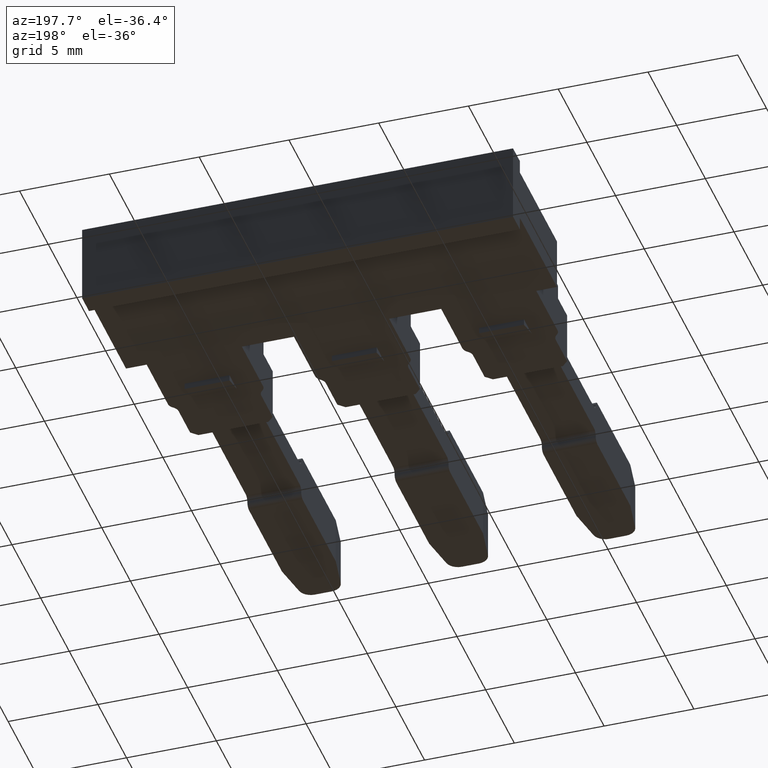
[diagram: clean part render]
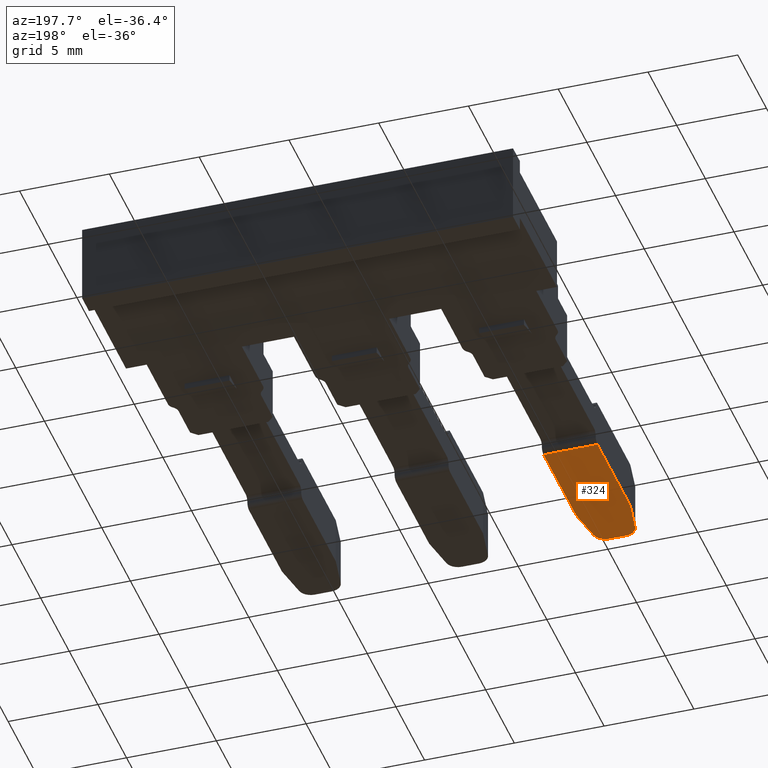
[diagram: same view with one face highlighted and labeled with its STEP entity id]
A machine part, auxiliary view. The second image highlights one B-rep face of the part: STEP entity #324.
In plain terms, the highlighted planar face has unit normal (0, 0, -1).
Its self-contained STEP definition (entity closure, byte-faithful):
#64 = EDGE_CURVE ( 'NONE', #536, #563, #842, .T. ) ;
#93 = EDGE_CURVE ( 'NONE', #555, #572, #920, .T. ) ;
#141 = EDGE_CURVE ( 'NONE', #550, #563, #3749, .T. ) ;
#148 = EDGE_CURVE ( 'NONE', #509, #555, #1075, .T. ) ;
#163 = EDGE_CURVE ( 'NONE', #550, #509, #1168, .T. ) ;
#171 = EDGE_CURVE ( 'NONE', #589, #528, #1160, .T. ) ;
#177 = EDGE_CURVE ( 'NONE', #536, #528, #3748, .T. ) ;
#189 = EDGE_CURVE ( 'NONE', #572, #589, #1204, .T. ) ;
#324 = ADVANCED_FACE ( 'NONE', ( #3225 ), #3226, .T. ) ;
#509 = VERTEX_POINT ( 'NONE', #2876 ) ;
#528 = VERTEX_POINT ( 'NONE', #2842 ) ;
#536 = VERTEX_POINT ( 'NONE', #2865 ) ;
#550 = VERTEX_POINT ( 'NONE', #2882 ) ;
#555 = VERTEX_POINT ( 'NONE', #2896 ) ;
#563 = VERTEX_POINT ( 'NONE', #2899 ) ;
#572 = VERTEX_POINT ( 'NONE', #2949 ) ;
#589 = VERTEX_POINT ( 'NONE', #2905 ) ;
#820 = DIRECTION ( 'NONE',  ( -1.000000000000000000, -5.361227742878434600E-014, 0.0000000000000000000 ) ) ;
#842 = LINE ( 'NONE', #850, #3597 ) ;
#850 = CARTESIAN_POINT ( 'NONE',  ( 1126.407449967277900, 643.9455402684813000, 0.1522013187406430500 ) ) ;
#920 = LINE ( 'NONE', #921, #3638 ) ;
#921 = CARTESIAN_POINT ( 'NONE',  ( 1133.294493762790800, 652.1700208247689300, 0.1522013187405628900 ) ) ;
#924 = DIRECTION ( 'NONE',  ( 0.9999999999311652800, -1.173325886225305400E-005, 5.364982877096552300E-014 ) ) ;
#1063 = DIRECTION ( 'NONE',  ( -5.364441115151317600E-014, -2.347622273454535600E-024, 1.000000000000000000 ) ) ;
#1073 = CARTESIAN_POINT ( 'NONE',  ( 1134.322684756973600, 644.6455402684818000, 0.1522013187406066100 ) ) ;
#1075 = LINE ( 'NONE', #1132, #3727 ) ;
#1076 = DIRECTION ( 'NONE',  ( 1.000000000000000000, 0.0000000000000000000, 5.362928603187818200E-014 ) ) ;
#1098 = DIRECTION ( 'NONE',  ( -8.155722747765769100E-008, 0.9999999999999966700, 0.0000000000000000000 ) ) ;
#1132 = CARTESIAN_POINT ( 'NONE',  ( 1133.294495269929700, 633.9904964572250500, 0.1522013187405610900 ) ) ;
#1133 = CARTESIAN_POINT ( 'NONE',  ( 1136.294499842614600, 646.4455650513585900, 0.1522013187407238500 ) ) ;
#1155 = CARTESIAN_POINT ( 'NONE',  ( 1133.633319294938700, 644.5239867421933000, 0.1522013187405810700 ) ) ;
#1156 = DIRECTION ( 'NONE',  ( -0.1736478946976841300, 0.9848078029072788700, -9.321079137594365300E-015 ) ) ;
#1160 = LINE ( 'NONE', #1133, #3733 ) ;
#1162 = DIRECTION ( 'NONE',  ( -0.1736478946976743900, -0.9848078029072806500, -9.321079137593844600E-015 ) ) ;
#1168 = LINE ( 'NONE', #1155, #3706 ) ;
#1182 = DIRECTION ( 'NONE',  ( -5.364441115151317600E-014, -2.347622273454535600E-024, 1.000000000000000000 ) ) ;
#1194 = DIRECTION ( 'NONE',  ( 1.000000000000000000, 0.0000000000000000000, 5.362928603186116800E-014 ) ) ;
#1201 = CARTESIAN_POINT ( 'NONE',  ( 1135.266308848431700, 644.6455402684818000, 0.1522013187406430500 ) ) ;
#1204 = LINE ( 'NONE', #1217, #3776 ) ;
#1217 = CARTESIAN_POINT ( 'NONE',  ( 1136.294513078971900, 633.9904998856812900, 0.1522013187407241500 ) ) ;
#1218 = DIRECTION ( 'NONE',  ( 7.162730294145293700E-007, -0.9999999999997434300, 0.0000000000000000000 ) ) ;
#1588 = EDGE_LOOP ( 'NONE', ( #1808, #1818, #1791, #1884, #1889, #1860, #1817, #1863 ) ) ;
#1791 = ORIENTED_EDGE ( 'NONE', *, *, #148, .T. ) ;
#1808 = ORIENTED_EDGE ( 'NONE', *, *, #141, .F. ) ;
#1817 = ORIENTED_EDGE ( 'NONE', *, *, #177, .F. ) ;
#1818 = ORIENTED_EDGE ( 'NONE', *, *, #163, .T. ) ;
#1860 = ORIENTED_EDGE ( 'NONE', *, *, #171, .T. ) ;
#1863 = ORIENTED_EDGE ( 'NONE', *, *, #64, .T. ) ;
#1884 = ORIENTED_EDGE ( 'NONE', *, *, #93, .T. ) ;
#1889 = ORIENTED_EDGE ( 'NONE', *, *, #189, .T. ) ;
#2842 = CARTESIAN_POINT ( 'NONE',  ( 1135.955674310466700, 644.5239867421933000, 0.1522013187406934000 ) ) ;
#2865 = CARTESIAN_POINT ( 'NONE',  ( 1135.266308848431700, 643.9455402684817500, 0.1522013187406430500 ) ) ;
#2876 = CARTESIAN_POINT ( 'NONE',  ( 1133.294494090349600, 646.4455650513584700, 0.1522013187405617000 ) ) ;
#2882 = CARTESIAN_POINT ( 'NONE',  ( 1133.633319294938700, 644.5239867421933000, 0.1522013187405756600 ) ) ;
#2896 = CARTESIAN_POINT ( 'NONE',  ( 1133.294493787258300, 652.1700208247687000, 0.1522013187405787900 ) ) ;
#2899 = CARTESIAN_POINT ( 'NONE',  ( 1134.322684756973600, 643.9455402684817500, 0.1522013187406248100 ) ) ;
#2905 = CARTESIAN_POINT ( 'NONE',  ( 1136.294502719368000, 646.4455650513607500, 0.1522013187407237300 ) ) ;
#2949 = CARTESIAN_POINT ( 'NONE',  ( 1136.294500057496600, 652.1699856249251800, 0.1522013187407402500 ) ) ;
#3194 = CARTESIAN_POINT ( 'NONE',  ( 1137.294489309877700, 641.3475629657206100, 0.1522013187407774700 ) ) ;
#3220 = DIRECTION ( 'NONE',  ( 5.364441115151317600E-014, 2.347622273454535600E-024, -1.000000000000000000 ) ) ;
#3225 = FACE_OUTER_BOUND ( 'NONE', #1588, .T. ) ;
#3226 = PLANE ( 'NONE',  #3934 ) ;
#3234 = DIRECTION ( 'NONE',  ( -1.000000000000000000, 0.0000000000000000000, -5.364441115151317600E-014 ) ) ;
#3597 = VECTOR ( 'NONE', #820, 1000.000000000000000 ) ;
#3638 = VECTOR ( 'NONE', #924, 1000.000000000000100 ) ;
#3706 = VECTOR ( 'NONE', #1156, 1000.000000000000200 ) ;
#3727 = VECTOR ( 'NONE', #1098, 1000.000000000000100 ) ;
#3733 = VECTOR ( 'NONE', #1162, 1000.000000000000100 ) ;
#3748 = CIRCLE ( 'NONE', #3751, 0.7000000000001449500 ) ;
#3749 = CIRCLE ( 'NONE', #3753, 0.6999999999999229100 ) ;
#3751 = AXIS2_PLACEMENT_3D ( 'NONE', #1201, #1182, #1194 ) ;
#3753 = AXIS2_PLACEMENT_3D ( 'NONE', #1073, #1063, #1076 ) ;
#3776 = VECTOR ( 'NONE', #1218, 1000.000000000000100 ) ;
#3934 = AXIS2_PLACEMENT_3D ( 'NONE', #3194, #3220, #3234 ) ;